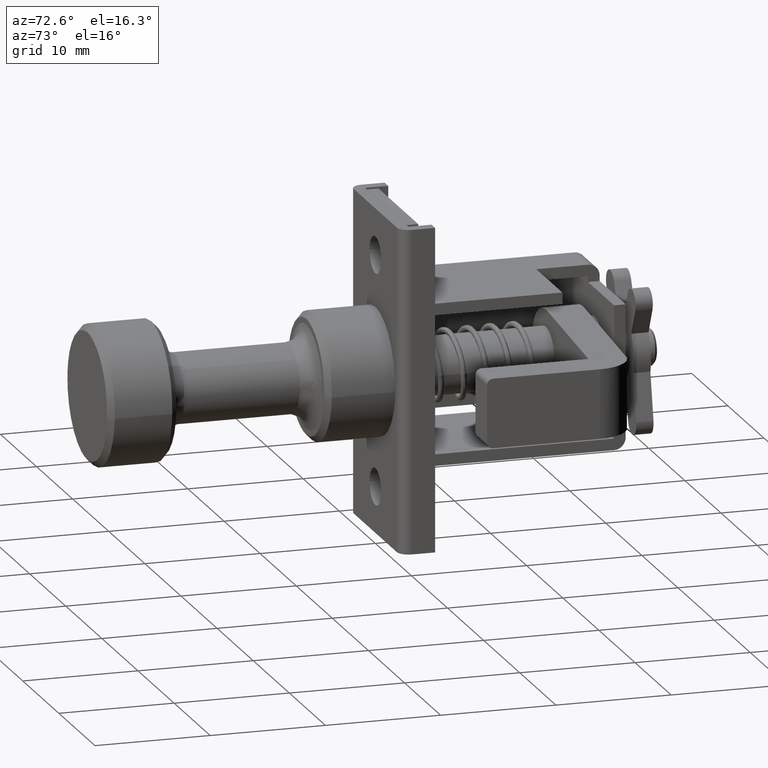
[diagram: clean part render]
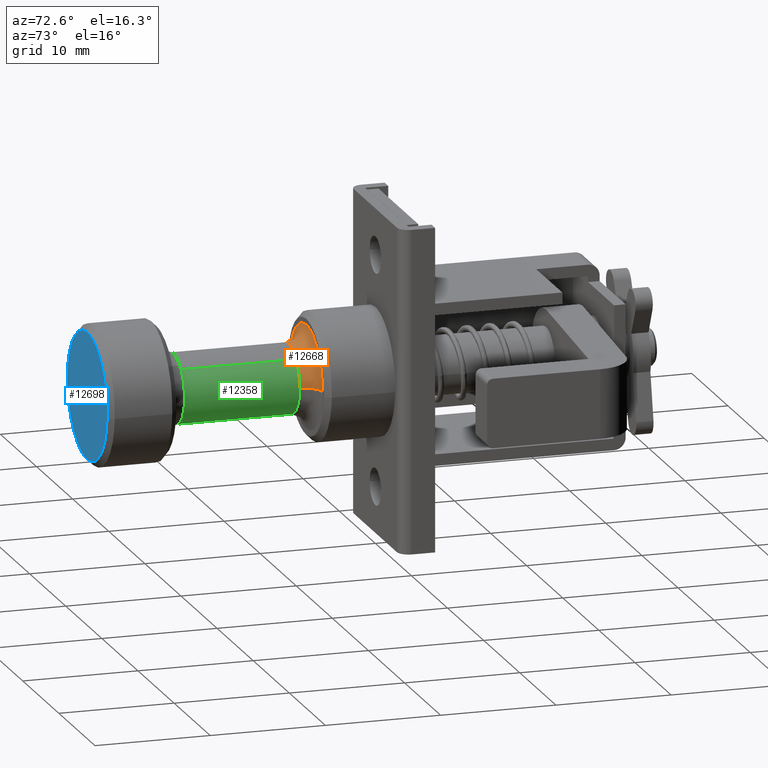
[diagram: same view with three faces highlighted in distinct colors, each labeled with its STEP entity id]
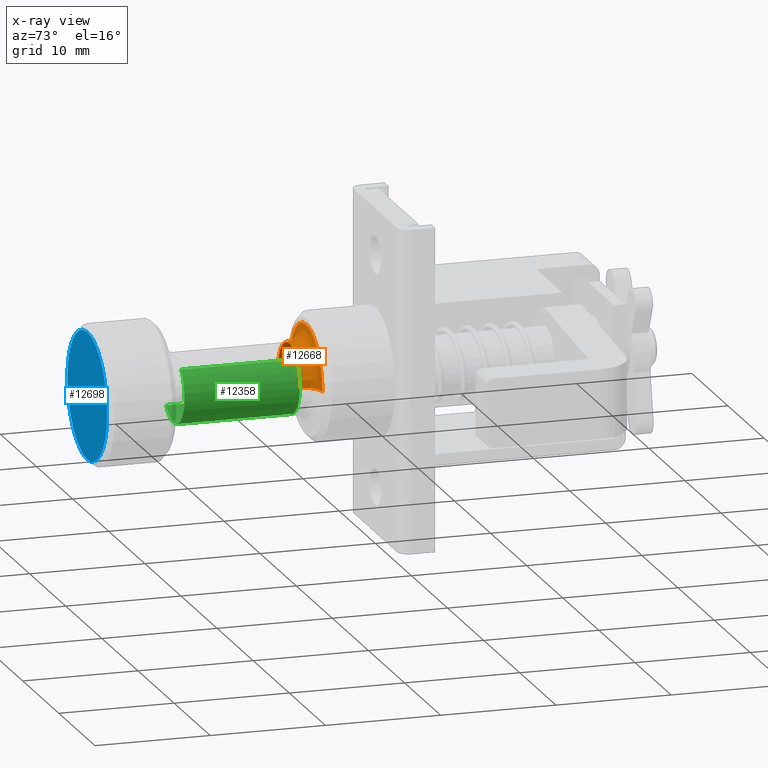
[diagram: x-ray of the same camera — body ghosted, the three highlighted faces saturated]
A machine part, auxiliary view with three faces highlighted in distinct colors.
The next image is the same camera in x-ray (body ghosted, the three faces saturated) — at least one of them is partly hidden behind the body in this view.
Their STEP definitions:

[orange] entity #12668 — the highlighted face is a freeform B-spline surface patch.
#12150=CARTESIAN_POINT('',(-7.500000000000000,-2.054455109063916,2.186141396351193));
#12151=VERTEX_POINT('',#12150);
#12157=CARTESIAN_POINT('',(-7.500000000000000,0.0,2.999999999999901));
#12158=VERTEX_POINT('',#12157);
#12159=CARTESIAN_POINT('',(-7.500000000000000,-2.054455109063916,2.186141396351193));
#12160=CARTESIAN_POINT('',(-7.500000000000000,-1.188429589297166,2.999999999999901));
#12161=CARTESIAN_POINT('',(-7.500000000000000,0.0,2.999999999999901));
#12169=(BOUNDED_CURVE()B_SPLINE_CURVE(2,(#12159,#12160,#12161),.UNSPECIFIED.,.F.,.U.)B_SPLINE_CURVE_WITH_KNOTS((3,3),(0.879684539190302,1.0),.UNSPECIFIED.)CURVE()GEOMETRIC_REPRESENTATION_ITEM()RATIONAL_B_SPLINE_CURVE((0.853759071059591,0.859041669641694,1.0))REPRESENTATION_ITEM(''));
#12170=EDGE_CURVE('',#12151,#12158,#12169,.T.);
#12172=CARTESIAN_POINT('',(-7.499999999699941,2.992697021519857,0.209199754745499));
#12173=VERTEX_POINT('',#12172);
#12174=CARTESIAN_POINT('',(-7.500000000000000,0.0,2.999999999999901));
#12175=CARTESIAN_POINT('',(-7.500000000000001,2.797610541763818,2.999999999999900));
#12176=CARTESIAN_POINT('',(-7.499999999699941,2.992697021519857,0.209199754745499));
#12184=(BOUNDED_CURVE()B_SPLINE_CURVE(2,(#12174,#12175,#12176),.UNSPECIFIED.,.F.,.U.)B_SPLINE_CURVE_WITH_KNOTS((3,3),(0.0,0.237833686532930),.UNSPECIFIED.)CURVE()GEOMETRIC_REPRESENTATION_ITEM()RATIONAL_B_SPLINE_CURVE((1.0,0.721360504036402,0.972879876382404))REPRESENTATION_ITEM(''));
#12185=EDGE_CURVE('',#12158,#12173,#12184,.T.);
#12325=CARTESIAN_POINT('',(-7.499999999700237,-2.999763132611158,-0.037698119665195));
#12326=VERTEX_POINT('',#12325);
#12340=CARTESIAN_POINT('',(-7.499999999700237,-2.999763132611158,-0.037698119665195));
#12341=CARTESIAN_POINT('',(-7.499999999999998,-2.999999999999900,-0.018849803990809));
#12342=CARTESIAN_POINT('',(-7.500000000000000,-2.999999999999901,0.0));
#12343=CARTESIAN_POINT('',(-7.500000000000001,-2.999999999999901,1.297553442463414));
#12344=CARTESIAN_POINT('',(-7.500000000000000,-2.054455109063916,2.186141396351193));
#12352=(BOUNDED_CURVE()B_SPLINE_CURVE(2,(#12340,#12341,#12342,#12343,#12344),.UNSPECIFIED.,.F.,.U.)B_SPLINE_CURVE_WITH_KNOTS((3,2,3),(0.747784295919953,0.750000000000000,0.879684539190302),.UNSPECIFIED.)CURVE()GEOMETRIC_REPRESENTATION_ITEM()RATIONAL_B_SPLINE_CURVE((0.994854295639927,0.997404141200228,1.0,0.848065111544853,0.853759071059591))REPRESENTATION_ITEM(''));
#12353=EDGE_CURVE('',#12326,#12151,#12352,.T.);
#12542=CARTESIAN_POINT('',(-6.000000000000001,4.489045532239048,0.313799632078889));
#12543=VERTEX_POINT('',#12542);
#12561=CARTESIAN_POINT('',(-6.0,-4.499644698911185,-0.056547179473449));
#12562=VERTEX_POINT('',#12561);
#12576=CARTESIAN_POINT('',(-7.499999999700237,-2.999763132611157,-0.037698119665195));
#12577=CARTESIAN_POINT('',(-6.000000000011813,-2.999763133210825,-0.037698119657590));
#12578=CARTESIAN_POINT('',(-5.999999999999999,-4.499644698911186,-0.056547179473449));
#12586=(BOUNDED_CURVE()B_SPLINE_CURVE(2,(#12576,#12577,#12578),.UNSPECIFIED.,.F.,.U.)B_SPLINE_CURVE_WITH_KNOTS((3,3),(-1.725134642871941,-0.274865356726261),.UNSPECIFIED.)CURVE()GEOMETRIC_REPRESENTATION_ITEM()RATIONAL_B_SPLINE_CURVE((0.883342149506818,0.624617224202142,0.883342149650178))REPRESENTATION_ITEM(''));
#12587=EDGE_CURVE('',#12326,#12562,#12586,.T.);
#12592=CARTESIAN_POINT('',(-7.499999999699941,2.992697021519857,0.209199754745499));
#12593=CARTESIAN_POINT('',(-6.000000000086867,2.992697022119854,0.209199754768168));
#12594=CARTESIAN_POINT('',(-6.000000000000001,4.489045532239049,0.313799632078888));
#12602=(BOUNDED_CURVE()B_SPLINE_CURVE(2,(#12592,#12593,#12594),.UNSPECIFIED.,.F.,.U.)B_SPLINE_CURVE_WITH_KNOTS((3,3),(-1.725134642871536,-0.274865356777573),.UNSPECIFIED.)CURVE()GEOMETRIC_REPRESENTATION_ITEM()RATIONAL_B_SPLINE_CURVE((0.863472075229610,0.610566959943162,0.863472075351990))REPRESENTATION_ITEM(''));
#12603=EDGE_CURVE('',#12173,#12543,#12602,.T.);
#12608=CARTESIAN_POINT('',(-7.604305667884693,-3.003393797981870,-0.037743746338397));
#12609=CARTESIAN_POINT('',(-7.604305667884692,-3.041137544320267,2.965650051643473));
#12610=CARTESIAN_POINT('',(-7.604305667884693,-0.037743746338397,3.003393797981870));
#12611=CARTESIAN_POINT('',(-7.604305667884691,2.798521518162440,3.039037234671278));
#12612=CARTESIAN_POINT('',(-7.604305667884693,2.996319134654859,0.209452952819446));
#12613=CARTESIAN_POINT('',(-5.883694135765039,-2.883466588103871,-0.036236617239393));
#12614=CARTESIAN_POINT('',(-5.883694135765039,-2.919703205343263,2.847229970864476));
#12615=CARTESIAN_POINT('',(-5.883694135765039,-0.036236617239393,2.883466588103871));
#12616=CARTESIAN_POINT('',(-5.883694135765039,2.686774974075451,2.917686762244259));
#12617=CARTESIAN_POINT('',(-5.883694135765038,2.876674420077408,0.201089378169587));
#12618=CARTESIAN_POINT('',(-6.003630960877994,-4.603942257825963,-0.057857890248284));
#12619=CARTESIAN_POINT('',(-6.003630960877993,-4.661800148074246,4.546084367577678));
#12620=CARTESIAN_POINT('',(-6.003630960877994,-0.057857890248284,4.603942257825963));
#12621=CARTESIAN_POINT('',(-6.003630960877995,4.289890818034210,4.658580555507331));
#12622=CARTESIAN_POINT('',(-6.003630960877995,4.593097412413745,0.321073214295055));
#12630=(BOUNDED_SURFACE()B_SPLINE_SURFACE(2,2,((#12608,#12613,#12618),(#12609,#12614,#12619),(#12610,#12615,#12620),(#12611,#12616,#12621),(#12612,#12617,#12622)),.UNSPECIFIED.,.F.,.F.,.U.)B_SPLINE_SURFACE_WITH_KNOTS((3,2,3),(3,3),(0.0,7.628663621506545,14.952180698152830),(0.0,2.733561030840491),.UNSPECIFIED.)GEOMETRIC_REPRESENTATION_ITEM()RATIONAL_B_SPLINE_SURFACE(((0.910479796259388,0.597479559977835,0.910479831346223),(0.643806438068360,0.422481848480682,0.643806462878498),(0.910479796259388,0.597479559977835,0.910479831346223),(0.654473372396001,0.429481756940568,0.654473397617207),(0.889999282350317,0.584039735734854,0.889999316647901)))REPRESENTATION_ITEM('')SURFACE());
#12631=CARTESIAN_POINT('',(-6.0,0.0,4.499999999999900));
#12632=VERTEX_POINT('',#12631);
#12633=CARTESIAN_POINT('',(-6.0,0.0,4.499999999999900));
#12634=CARTESIAN_POINT('',(-6.000000000000001,4.196415812713875,4.499999999999900));
#12635=CARTESIAN_POINT('',(-6.000000000000001,4.489045532239048,0.313799632078889));
#12643=(BOUNDED_CURVE()B_SPLINE_CURVE(2,(#12633,#12634,#12635),.UNSPECIFIED.,.F.,.U.)B_SPLINE_CURVE_WITH_KNOTS((3,3),(0.0,0.237833686535714),.UNSPECIFIED.)CURVE()GEOMETRIC_REPRESENTATION_ITEM()RATIONAL_B_SPLINE_CURVE((1.0,0.721360504033140,0.972879876388293))REPRESENTATION_ITEM(''));
#12644=EDGE_CURVE('',#12632,#12543,#12643,.T.);
#12645=ORIENTED_EDGE('',*,*,#12644,.T.);
#12646=ORIENTED_EDGE('',*,*,#12603,.F.);
#12647=ORIENTED_EDGE('',*,*,#12185,.F.);
#12648=ORIENTED_EDGE('',*,*,#12170,.F.);
#12649=ORIENTED_EDGE('',*,*,#12353,.F.);
#12650=ORIENTED_EDGE('',*,*,#12587,.T.);
#12651=CARTESIAN_POINT('',(-6.0,-4.499644698911185,-0.056547179473449));
#12652=CARTESIAN_POINT('',(-6.0,-4.499999999999900,-0.028274705961940));
#12653=CARTESIAN_POINT('',(-6.0,-4.499999999999900,0.0));
#12654=CARTESIAN_POINT('',(-6.0,-4.499999999999901,4.499999999999901));
#12655=CARTESIAN_POINT('',(-6.0,0.0,4.499999999999900));
#12663=(BOUNDED_CURVE()B_SPLINE_CURVE(2,(#12651,#12652,#12653,#12654,#12655),.UNSPECIFIED.,.F.,.U.)B_SPLINE_CURVE_WITH_KNOTS((3,2,3),(0.747784295921850,0.750000000000000,1.0),.UNSPECIFIED.)CURVE()GEOMETRIC_REPRESENTATION_ITEM()RATIONAL_B_SPLINE_CURVE((0.994854295644294,0.997404141202451,1.0,0.707106781186547,1.0))REPRESENTATION_ITEM(''));
#12664=EDGE_CURVE('',#12562,#12632,#12663,.T.);
#12665=ORIENTED_EDGE('',*,*,#12664,.T.);
#12666=EDGE_LOOP('',(#12645,#12646,#12647,#12648,#12649,#12650,#12665));
#12667=FACE_OUTER_BOUND('',#12666,.T.);
#12668=ADVANCED_FACE('',(#12667),#12630,.F.);

[blue] entity #12698 — the highlighted face is a freeform B-spline surface patch.
#10606=CARTESIAN_POINT('',(-24.999999999981721,5.483045335539364,0.431525026643913));
#10607=VERTEX_POINT('',#10606);
#10613=CARTESIAN_POINT('',(-25.0,0.0,5.499999999999900));
#10614=VERTEX_POINT('',#10613);
#10615=CARTESIAN_POINT('',(-25.0,0.0,5.499999999999900));
#10616=CARTESIAN_POINT('',(-25.000000000000011,5.084147703860843,5.499999999999901));
#10617=CARTESIAN_POINT('',(-24.999999999981718,5.483045335539364,0.431525026643913));
#10625=(BOUNDED_CURVE()B_SPLINE_CURVE(2,(#10615,#10616,#10617),.UNSPECIFIED.,.F.,.U.)B_SPLINE_CURVE_WITH_KNOTS((3,3),(0.0,0.236331300624054),.UNSPECIFIED.)CURVE()GEOMETRIC_REPRESENTATION_ITEM()RATIONAL_B_SPLINE_CURVE((1.0,0.723120658615404,0.969723356153633))REPRESENTATION_ITEM(''));
#10626=EDGE_CURVE('',#10614,#10607,#10625,.T.);
#10628=CARTESIAN_POINT('',(-24.999999999981711,-5.483045335539364,-0.431525026643913));
#10629=VERTEX_POINT('',#10628);
#10630=CARTESIAN_POINT('',(-24.999999999981718,-5.483045335539364,-0.431525026643913));
#10631=CARTESIAN_POINT('',(-25.0,-5.499999999999900,-0.216095588682163));
#10632=CARTESIAN_POINT('',(-25.0,-5.499999999999900,0.0));
#10633=CARTESIAN_POINT('',(-25.000000000000004,-5.499999999999900,5.499999999999900));
#10634=CARTESIAN_POINT('',(-25.0,0.0,5.499999999999900));
#10642=(BOUNDED_CURVE()B_SPLINE_CURVE(2,(#10630,#10631,#10632,#10633,#10634),.UNSPECIFIED.,.F.,.U.)B_SPLINE_CURVE_WITH_KNOTS((3,2,3),(0.736331300624054,0.750000000000000,1.0),.UNSPECIFIED.)CURVE()GEOMETRIC_REPRESENTATION_ITEM()RATIONAL_B_SPLINE_CURVE((0.969723356153633,0.983986122571143,1.0,0.707106781186547,1.0))REPRESENTATION_ITEM(''));
#10643=EDGE_CURVE('',#10629,#10614,#10642,.T.);
#10677=CARTESIAN_POINT('',(-25.0,0.0,-5.499999999999900));
#10678=VERTEX_POINT('',#10677);
#10679=CARTESIAN_POINT('',(-25.0,0.0,-5.499999999999900));
#10680=CARTESIAN_POINT('',(-24.999999999999993,-5.084147703860877,-5.499999999999900));
#10681=CARTESIAN_POINT('',(-24.999999999981714,-5.483045335539364,-0.431525026643913));
#10689=(BOUNDED_CURVE()B_SPLINE_CURVE(2,(#10679,#10680,#10681),.UNSPECIFIED.,.F.,.U.)B_SPLINE_CURVE_WITH_KNOTS((3,3),(0.500000000000000,0.736331300624055),.UNSPECIFIED.)CURVE()GEOMETRIC_REPRESENTATION_ITEM()RATIONAL_B_SPLINE_CURVE((1.0,0.723120658615403,0.969723356153635))REPRESENTATION_ITEM(''));
#10690=EDGE_CURVE('',#10678,#10629,#10689,.T.);
#10692=CARTESIAN_POINT('',(-24.999999999981718,5.483045335539364,0.431525026643913));
#10693=CARTESIAN_POINT('',(-25.0,5.499999999999900,0.216095588682163));
#10694=CARTESIAN_POINT('',(-25.0,5.499999999999900,0.0));
#10695=CARTESIAN_POINT('',(-25.000000000000004,5.499999999999900,-5.499999999999900));
#10696=CARTESIAN_POINT('',(-25.0,0.0,-5.499999999999900));
#10704=(BOUNDED_CURVE()B_SPLINE_CURVE(2,(#10692,#10693,#10694,#10695,#10696),.UNSPECIFIED.,.F.,.U.)B_SPLINE_CURVE_WITH_KNOTS((3,2,3),(0.236331300624054,0.250000000000000,0.500000000000000),.UNSPECIFIED.)CURVE()GEOMETRIC_REPRESENTATION_ITEM()RATIONAL_B_SPLINE_CURVE((0.969723356153633,0.983986122571143,1.0,0.707106781186547,1.0))REPRESENTATION_ITEM(''));
#10705=EDGE_CURVE('',#10607,#10678,#10704,.T.);
#12687=CARTESIAN_POINT('',(-25.0,-6.047771139997532,-6.049449978679756));
#12688=CARTESIAN_POINT('',(-25.0,-6.047771139997532,6.049450273722747));
#12689=CARTESIAN_POINT('',(-25.0,6.047771435040521,-6.049449978679756));
#12690=CARTESIAN_POINT('',(-25.0,6.047771435040521,6.049450273722747));
#12691=B_SPLINE_SURFACE_WITH_KNOTS('',1,1,((#12687,#12689),(#12688,#12690)),.UNSPECIFIED.,.F.,.F.,.U.,(2,2),(2,2),(0.0,12.098900252402499),(0.0,12.095542575038049),.UNSPECIFIED.);
#12692=ORIENTED_EDGE('',*,*,#10626,.T.);
#12693=ORIENTED_EDGE('',*,*,#10705,.T.);
#12694=ORIENTED_EDGE('',*,*,#10690,.T.);
#12695=ORIENTED_EDGE('',*,*,#10643,.T.);
#12696=EDGE_LOOP('',(#12692,#12693,#12694,#12695));
#12697=FACE_OUTER_BOUND('',#12696,.T.);
#12698=ADVANCED_FACE('',(#12697),#12691,.T.);

[green] entity #12358 — the highlighted face is a freeform B-spline surface patch.
#12133=CARTESIAN_POINT('',(-17.500000000000011,-2.054455104701528,2.186141400450802));
#12134=VERTEX_POINT('',#12133);
#12150=CARTESIAN_POINT('',(-7.500000000000000,-2.054455109063916,2.186141396351193));
#12151=VERTEX_POINT('',#12150);
#12152=CARTESIAN_POINT('',(-7.500000000000000,-2.054455109063916,2.186141396351193));
#12153=CARTESIAN_POINT('',(-17.500000000000011,-2.054455104701528,2.186141400450802));
#12154=QUASI_UNIFORM_CURVE('',1,(#12152,#12153),.UNSPECIFIED.,.F.,.U.);
#12155=EDGE_CURVE('',#12151,#12134,#12154,.T.);
#12187=CARTESIAN_POINT('',(-7.500000000000000,2.176123500342510,-2.065063318945970));
#12188=VERTEX_POINT('',#12187);
#12204=CARTESIAN_POINT('',(-17.500000000005830,2.176123505181144,-2.065063313847110));
#12205=VERTEX_POINT('',#12204);
#12206=CARTESIAN_POINT('',(-7.500000000000000,2.176123500342510,-2.065063318945970));
#12207=CARTESIAN_POINT('',(-17.500000000005830,2.176123505181144,-2.065063313847110));
#12208=QUASI_UNIFORM_CURVE('',1,(#12206,#12207),.UNSPECIFIED.,.F.,.U.);
#12209=EDGE_CURVE('',#12188,#12205,#12208,.T.);
#12242=CARTESIAN_POINT('',(-7.249999999691973,2.176123113036790,-2.065063727081193));
#12243=CARTESIAN_POINT('',(-7.249999999691972,0.111059385955597,-4.241186840117982));
#12244=CARTESIAN_POINT('',(-7.249999999691973,-2.065063727081193,-2.176123113036790));
#12245=CARTESIAN_POINT('',(-7.249999999691972,-4.241186840117982,-0.111059385955597));
#12246=CARTESIAN_POINT('',(-7.249999999691973,-2.176123113036790,2.065063727081193));
#12247=CARTESIAN_POINT('',(-7.249999999691973,-2.117021876379110,2.127343435650583));
#12248=CARTESIAN_POINT('',(-7.249999999691973,-2.054455458236623,2.186141068211551));
#12249=CARTESIAN_POINT('',(-17.756250000026849,2.176123113036790,-2.065063727081193));
#12250=CARTESIAN_POINT('',(-17.756250000026849,0.111059385955597,-4.241186840117982));
#12251=CARTESIAN_POINT('',(-17.756250000026849,-2.065063727081193,-2.176123113036790));
#12252=CARTESIAN_POINT('',(-17.756250000026849,-4.241186840117982,-0.111059385955597));
#12253=CARTESIAN_POINT('',(-17.756250000026849,-2.176123113036790,2.065063727081193));
#12254=CARTESIAN_POINT('',(-17.756250000026849,-2.117021876379110,2.127343435650583));
#12255=CARTESIAN_POINT('',(-17.756250000026853,-2.054455458236623,2.186141068211551));
#12263=(BOUNDED_SURFACE()B_SPLINE_SURFACE(2,1,((#12242,#12249),(#12243,#12250),(#12244,#12251),(#12245,#12252),(#12246,#12253),(#12247,#12254),(#12248,#12255)),.UNSPECIFIED.,.F.,.F.,.U.)B_SPLINE_SURFACE_WITH_KNOTS((3,2,2,3),(2,2),(0.0,4.970562748476973,9.941125496953946,10.139948006893031),(0.0,10.506250000334880),.UNSPECIFIED.)GEOMETRIC_REPRESENTATION_ITEM()RATIONAL_B_SPLINE_SURFACE(((1.0,1.0),(0.707106781186548,0.707106781186548),(1.0,1.0),(0.707106781186548,0.707106781186548),(1.0,1.0),(0.988284271247462,0.988284271247462),(0.977505800795127,0.977505800795127)))REPRESENTATION_ITEM('')SURFACE());
#12264=CARTESIAN_POINT('',(-17.500000000017859,-2.979934908486278,-0.346392755675216));
#12265=VERTEX_POINT('',#12264);
#12266=CARTESIAN_POINT('',(-17.500000000017863,-2.979934908486278,-0.346392755675217));
#12267=CARTESIAN_POINT('',(-17.500000000000000,-2.999999999999900,-0.173777555672112));
#12268=CARTESIAN_POINT('',(-17.500000000000000,-2.999999999999901,0.0));
#12269=CARTESIAN_POINT('',(-17.500000000000000,-2.999999999999900,1.297553449569732));
#12270=CARTESIAN_POINT('',(-17.500000000000004,-2.054455104701528,2.186141400450802));
#12278=(BOUNDED_CURVE()B_SPLINE_CURVE(2,(#12266,#12267,#12268,#12269,#12270),.UNSPECIFIED.,.F.,.U.)B_SPLINE_CURVE_WITH_KNOTS((3,2,3),(0.729999992314738,0.750000000000000,0.879684539792635),.UNSPECIFIED.)CURVE()GEOMETRIC_REPRESENTATION_ITEM()RATIONAL_B_SPLINE_CURVE((0.956886103064201,0.976568533491079,1.0,0.848065110839175,0.853759071112483))REPRESENTATION_ITEM(''));
#12279=EDGE_CURVE('',#12265,#12134,#12278,.T.);
#12280=ORIENTED_EDGE('',*,*,#12279,.F.);
#12281=CARTESIAN_POINT('',(-17.500000000000000,0.0,-2.999999999999901));
#12282=VERTEX_POINT('',#12281);
#12283=CARTESIAN_POINT('',(-17.500000000000000,0.0,-2.999999999999901));
#12284=CARTESIAN_POINT('',(-17.500000000000004,-2.671474980289797,-2.999999999999900));
#12285=CARTESIAN_POINT('',(-17.500000000017859,-2.979934908486278,-0.346392755675217));
#12293=(BOUNDED_CURVE()B_SPLINE_CURVE(2,(#12283,#12284,#12285),.UNSPECIFIED.,.F.,.U.)B_SPLINE_CURVE_WITH_KNOTS((3,3),(0.500000000000000,0.729999992314738),.UNSPECIFIED.)CURVE()GEOMETRIC_REPRESENTATION_ITEM()RATIONAL_B_SPLINE_CURVE((1.0,0.730538247695468,0.956886103064201))REPRESENTATION_ITEM(''));
#12294=EDGE_CURVE('',#12282,#12265,#12293,.T.);
#12295=ORIENTED_EDGE('',*,*,#12294,.F.);
#12296=CARTESIAN_POINT('',(-17.500000000005830,2.176123505181143,-2.065063313847110));
#12297=CARTESIAN_POINT('',(-17.499999999999996,1.288902392739540,-2.999999999999901));
#12298=CARTESIAN_POINT('',(-17.500000000000000,0.0,-2.999999999999901));
#12306=(BOUNDED_CURVE()B_SPLINE_CURVE(2,(#12296,#12297,#12298),.UNSPECIFIED.,.F.,.U.)B_SPLINE_CURVE_WITH_KNOTS((3,3),(0.371049469343493,0.500000000000000),.UNSPECIFIED.)CURVE()GEOMETRIC_REPRESENTATION_ITEM()RATIONAL_B_SPLINE_CURVE((0.853699665613817,0.848925056033251,1.0))REPRESENTATION_ITEM(''));
#12307=EDGE_CURVE('',#12205,#12282,#12306,.T.);
#12308=ORIENTED_EDGE('',*,*,#12307,.F.);
#12309=ORIENTED_EDGE('',*,*,#12209,.F.);
#12310=CARTESIAN_POINT('',(-7.500000000000000,0.0,-2.999999999999901));
#12311=VERTEX_POINT('',#12310);
#12312=CARTESIAN_POINT('',(-7.499999999999999,2.176123500342511,-2.065063318945969));
#12313=CARTESIAN_POINT('',(-7.500000000000000,1.288902384412759,-2.999999999999900));
#12314=CARTESIAN_POINT('',(-7.500000000000000,0.0,-2.999999999999901));
#12322=(BOUNDED_CURVE()B_SPLINE_CURVE(2,(#12312,#12313,#12314),.UNSPECIFIED.,.F.,.U.)B_SPLINE_CURVE_WITH_KNOTS((3,3),(0.371049470050705,0.500000000000000),.UNSPECIFIED.)CURVE()GEOMETRIC_REPRESENTATION_ITEM()RATIONAL_B_SPLINE_CURVE((0.853699665561446,0.848925056861801,1.0))REPRESENTATION_ITEM(''));
#12323=EDGE_CURVE('',#12188,#12311,#12322,.T.);
#12324=ORIENTED_EDGE('',*,*,#12323,.T.);
#12325=CARTESIAN_POINT('',(-7.499999999700237,-2.999763132611158,-0.037698119665195));
#12326=VERTEX_POINT('',#12325);
#12327=CARTESIAN_POINT('',(-7.500000000000000,0.0,-2.999999999999901));
#12328=CARTESIAN_POINT('',(-7.500000000000000,-2.962535789691934,-2.999999999999900));
#12329=CARTESIAN_POINT('',(-7.499999999700236,-2.999763132611159,-0.037698119665195));
#12337=(BOUNDED_CURVE()B_SPLINE_CURVE(2,(#12327,#12328,#12329),.UNSPECIFIED.,.F.,.U.)B_SPLINE_CURVE_WITH_KNOTS((3,3),(0.500000000000000,0.747784295919953),.UNSPECIFIED.)CURVE()GEOMETRIC_REPRESENTATION_ITEM()RATIONAL_B_SPLINE_CURVE((1.0,0.709702639986320,0.994854295639926))REPRESENTATION_ITEM(''));
#12338=EDGE_CURVE('',#12311,#12326,#12337,.T.);
#12339=ORIENTED_EDGE('',*,*,#12338,.T.);
#12340=CARTESIAN_POINT('',(-7.499999999700237,-2.999763132611158,-0.037698119665195));
#12341=CARTESIAN_POINT('',(-7.499999999999998,-2.999999999999900,-0.018849803990809));
#12342=CARTESIAN_POINT('',(-7.500000000000000,-2.999999999999901,0.0));
#12343=CARTESIAN_POINT('',(-7.500000000000001,-2.999999999999901,1.297553442463414));
#12344=CARTESIAN_POINT('',(-7.500000000000000,-2.054455109063916,2.186141396351193));
#12352=(BOUNDED_CURVE()B_SPLINE_CURVE(2,(#12340,#12341,#12342,#12343,#12344),.UNSPECIFIED.,.F.,.U.)B_SPLINE_CURVE_WITH_KNOTS((3,2,3),(0.747784295919953,0.750000000000000,0.879684539190302),.UNSPECIFIED.)CURVE()GEOMETRIC_REPRESENTATION_ITEM()RATIONAL_B_SPLINE_CURVE((0.994854295639927,0.997404141200228,1.0,0.848065111544853,0.853759071059591))REPRESENTATION_ITEM(''));
#12353=EDGE_CURVE('',#12326,#12151,#12352,.T.);
#12354=ORIENTED_EDGE('',*,*,#12353,.T.);
#12355=ORIENTED_EDGE('',*,*,#12155,.T.);
#12356=EDGE_LOOP('',(#12280,#12295,#12308,#12309,#12324,#12339,#12354,#12355));
#12357=FACE_OUTER_BOUND('',#12356,.T.);
#12358=ADVANCED_FACE('',(#12357),#12263,.T.);